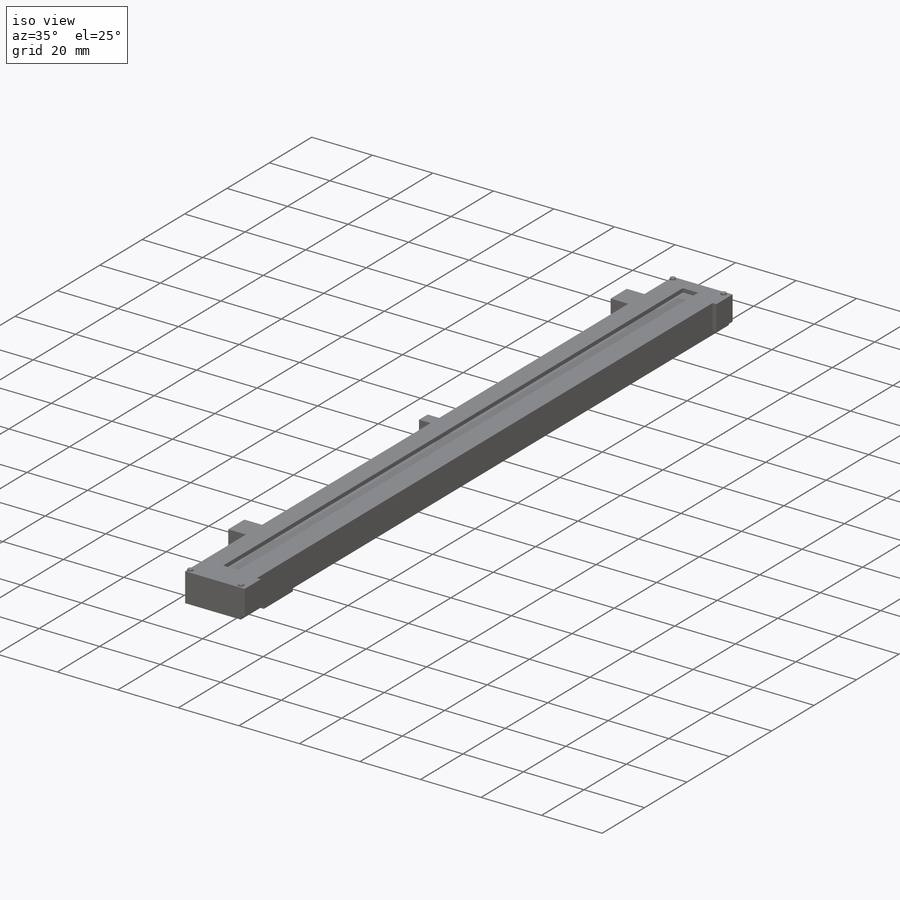
[diagram: iso view]
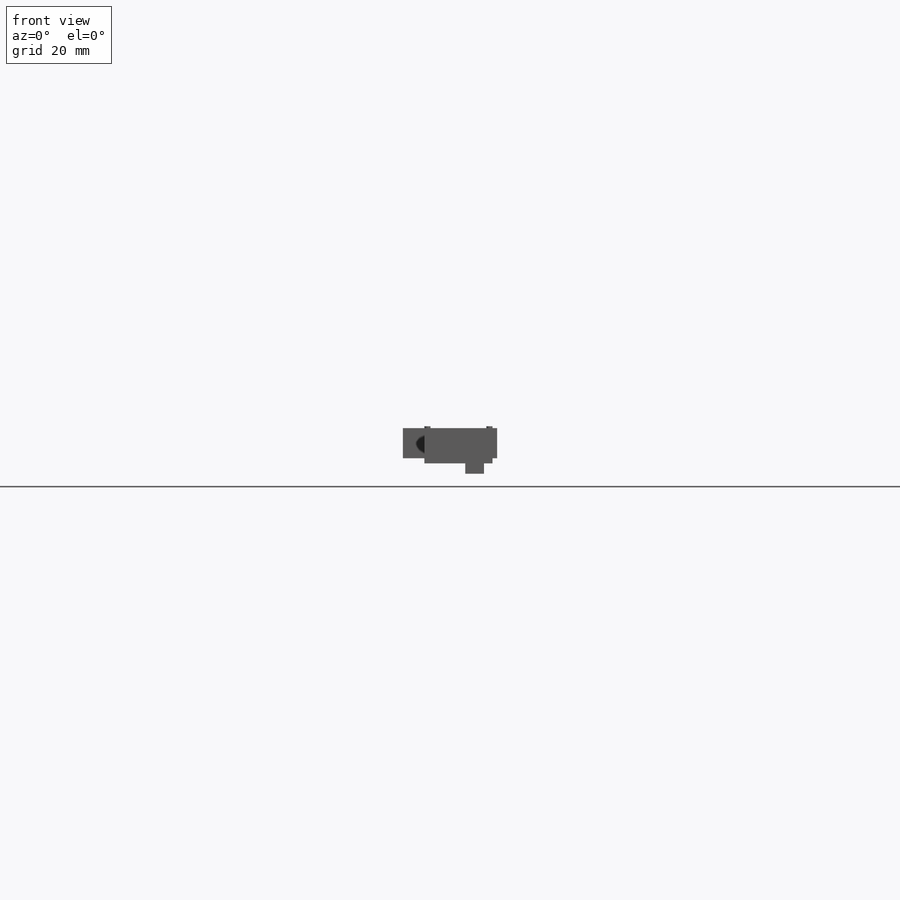
[diagram: front view]
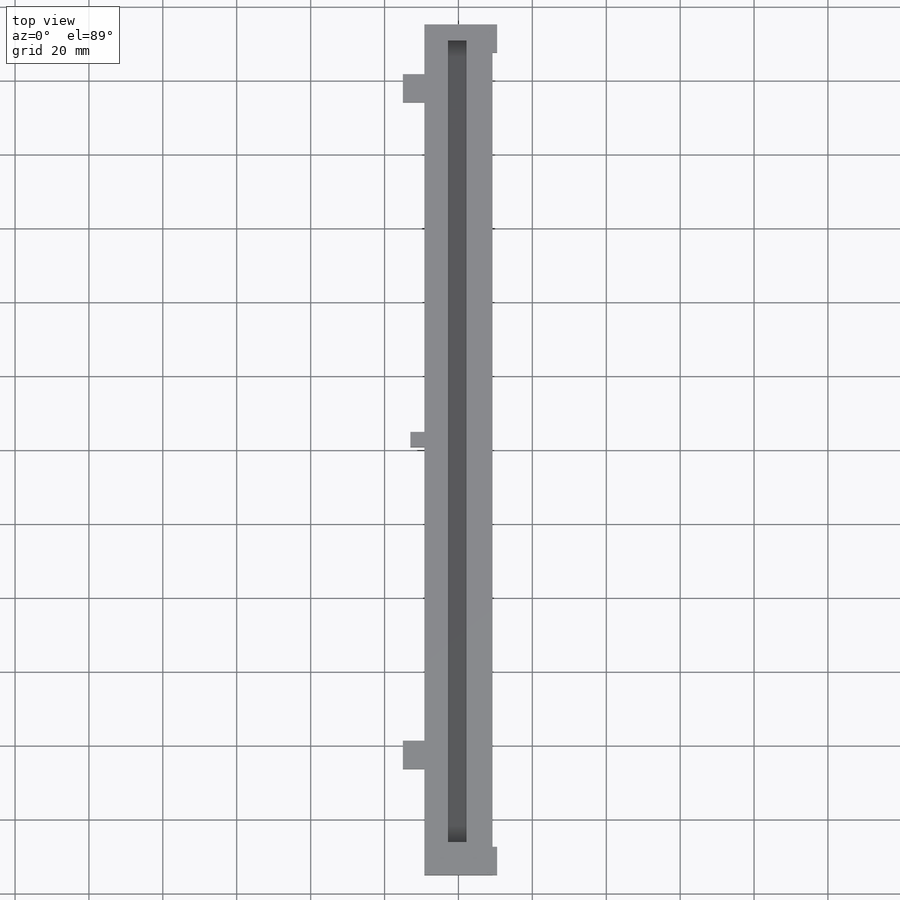
[diagram: top view]
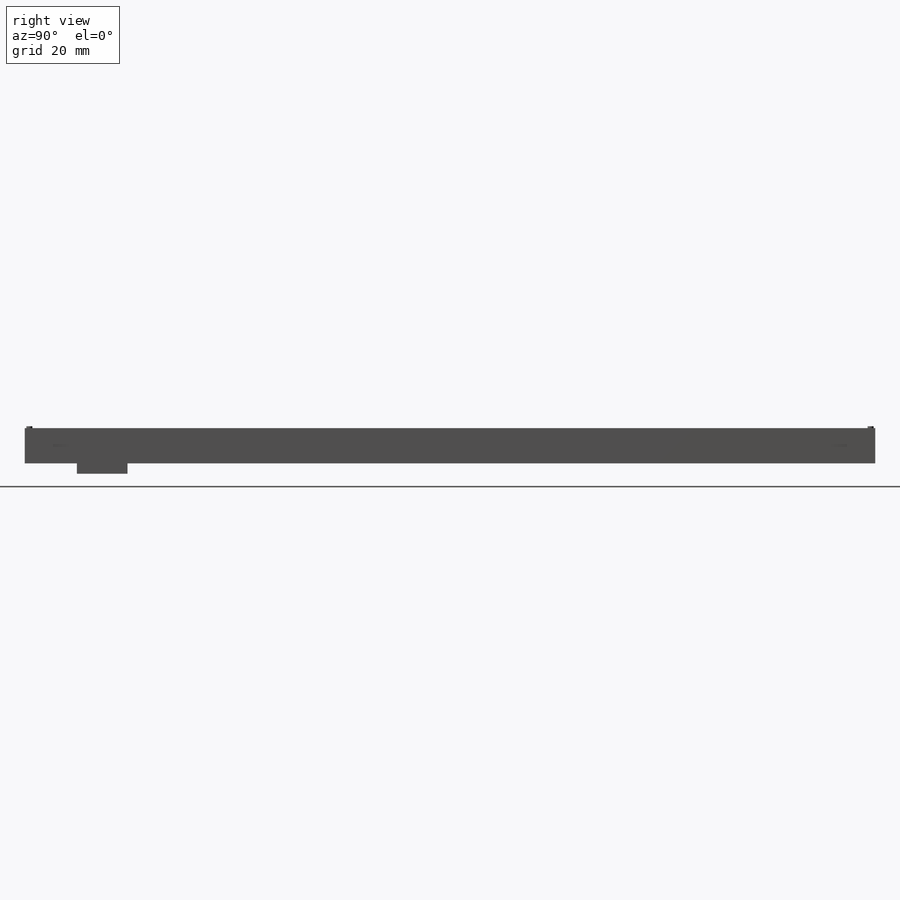
[diagram: right view]
SOLIDWORKS PART (.sldprt)
format: sldprt  version: not decoded by parser v0  size: 249,856 bytes
history: native  units: mm
features: sketch x5, extrude x4, material x1, cut_extrude x1 (+12 scaffold rows collapsed)
feature tree (23):
  scaffold x12  (default folders/planes/origin — collapsed)
  material  "Delrin 2700 NC010, Low Viscosity Acetal Copolymer (SS)"
  sketch  "Sketch1"  dims[D1=18.415mm D2=230.1875mm]
  extrude  "Boss-Extrude1"  Depth=9.525mm
  sketch  "Sketch2"  dims[D1=5.08mm D2=4.445mm D3=8.89mm D4=6.35mm]
  cut_extrude  "Cut-Extrude1"  Depth=1.27mm
  sketch  "Sketch3"  dims[D1=7.62mm D2=5.842mm D3=28.702mm D4=13.462mm D5=115.824mm D6=4.064mm D7=3.81mm D8=7.62mm D9=1.27mm]
  extrude  "Boss-Extrude2"  Depth=8.128mm
  sketch  "Sketch4"  dims[D1=1.651mm D2=1.27mm D3=1.27mm]
  extrude  "Boss-Extrude3"  Depth=0.508mm
  sketch  "Sketch5"  dims[D1=5.08mm D2=13.716mm D3=14.1224mm D4=2.286mm]
  extrude  "Boss-Extrude4"  Depth=2.794mm
decode coverage: 10 of 10 modeling features carry decoded parameters
note: suppression state not decoded; provenance and decode notes live in map.json
